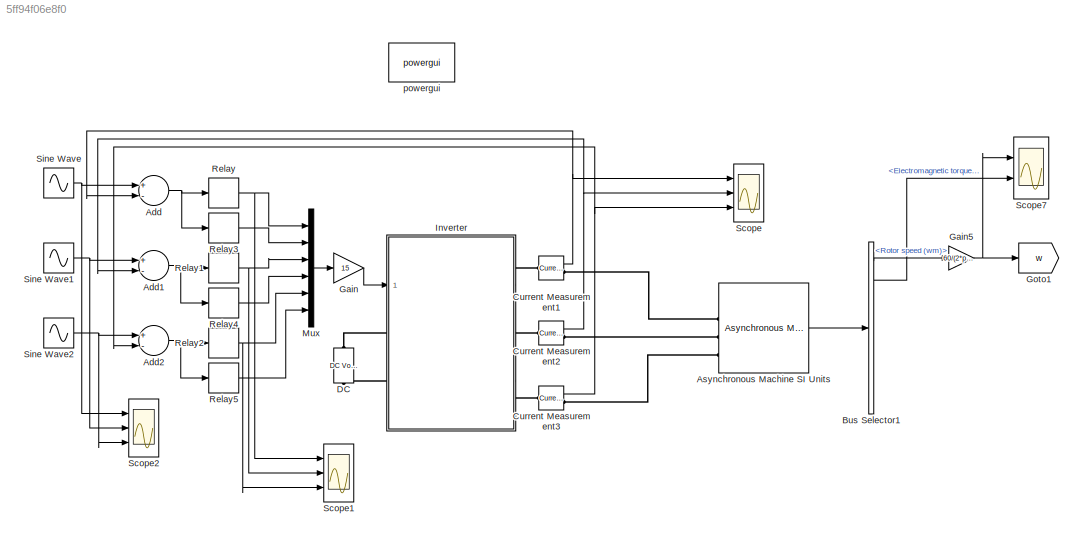
MODEL slx_5ff94f06e8f0
KIND model
CONFIG AbsTol = auto
CONFIG FixedStep = 1e-5
CONFIG MaxStep = auto
CONFIG MinStep = auto
CONFIG RelTol = 1e-3
CONFIG SampleTimeConstraint = Unconstrained
CONFIG Solver = FixedStepAuto
CONFIG SolverMode = Auto
CONFIG SolverName = FixedStepAuto
CONFIG StartTime = 0.0
CONFIG StopTime = 5
BLOCK [Sum] Add
  InputSameDT = off
  Inputs = +-
  OutDataTypeStr = Inherit: Inherit via internal rule
  Ports = [2, 1]
  SaturateOnIntegerOverflow = off
BLOCK [Sum] Add1
  InputSameDT = off
  Inputs = +-
  OutDataTypeStr = Inherit: Inherit via internal rule
  Ports = [2, 1]
  SaturateOnIntegerOverflow = off
BLOCK [Sum] Add2
  InputSameDT = off
  Inputs = +-
  OutDataTypeStr = Inherit: Inherit via internal rule
  Ports = [2, 1]
  SaturateOnIntegerOverflow = off
BLOCK [Reference] Asynchronous Machine SI Units  REF=powerlib/Machines/Asynchronous Machine
SI Units
  Ports = [1, 1, 0, 0, 0, 3]
  SourceBlock = powerlib/Machines/Asynchronous Machine\nSI Units
  SourceType = Asynchronous Machine
BLOCK [BusSelector] Bus Selector1
  OutputSignals = Mechanical.Rotor speed (wm),Mechanical.Electromagnetic torque Te (N*m),Stator measurements.Stator voltage vs_d (V),Stator measurements.Stator voltage vs_q (V),Stator measurements.Stator current is_d (A),Stator measurements.Stator current  is_q (A),Rotor measurements.Rotor flux phir_d (V s),Rotor measurements.Rotor flux phir_q (V s)
  Ports = [1, 8]
BLOCK [Reference] Current Measurement1  REF=powerlib/Measurements/Current Measurement
  Ports = [0, 1, 0, 0, 0, 1, 1]
  SourceBlock = powerlib/Measurements/Current Measurement
  SourceType = Current Measurement
  UserDataPersistent = on
BLOCK [Reference] Current Measurement2  REF=powerlib/Measurements/Current Measurement
  Ports = [0, 1, 0, 0, 0, 1, 1]
  SourceBlock = powerlib/Measurements/Current Measurement
  SourceType = Current Measurement
  UserDataPersistent = on
BLOCK [Reference] Current Measurement3  REF=powerlib/Measurements/Current Measurement
  Ports = [0, 1, 0, 0, 0, 1, 1]
  SourceBlock = powerlib/Measurements/Current Measurement
  SourceType = Current Measurement
  UserDataPersistent = on
BLOCK [Reference] DC  REF=powerlib/Electrical
Sources/DC Voltage Source
  Ports = [0, 0, 0, 0, 0, 1, 1]
  SourceBlock = powerlib/Electrical\nSources/DC Voltage Source
  SourceType = DC Voltage Source
BLOCK [Gain] Gain
  Gain = 15
  OutDataTypeStr = Inherit: Inherit via internal rule
  ParamDataTypeStr = Inherit: Inherit via internal rule
  SaturateOnIntegerOverflow = off
BLOCK [Gain] Gain5
  Gain = 60/(2*pi)
  OutDataTypeStr = Inherit: Inherit via internal rule
  ParamDataTypeStr = Inherit: Inherit via internal rule
  SaturateOnIntegerOverflow = off
BLOCK [Goto] Goto1
  GotoTag = w
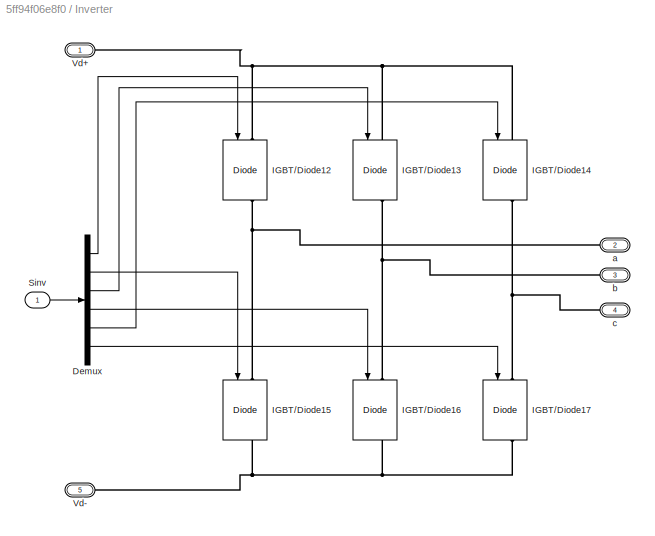
BLOCK [SubSystem] Inverter
  Ports = [1, 0, 0, 0, 0, 2, 3]
  RequestExecContextInheritance = off
  Variant = off
BLOCK [Demux] Inverter/Demux
  DisplayOption = bar
  Outputs = 6
  Ports = [1, 6]
BLOCK [Reference] Inverter/IGBT//Diode12  REF=powerlib/Power
Electronics/IGBT//Diode
  Ports = [1, 1, 0, 0, 0, 1, 1]
  SourceBlock = powerlib/Power\nElectronics/IGBT//Diode
  SourceType = IGBT/Diode
BLOCK [Reference] Inverter/IGBT//Diode13  REF=powerlib/Power
Electronics/IGBT//Diode
  Ports = [1, 1, 0, 0, 0, 1, 1]
  SourceBlock = powerlib/Power\nElectronics/IGBT//Diode
  SourceType = IGBT/Diode
BLOCK [Reference] Inverter/IGBT//Diode14  REF=powerlib/Power
Electronics/IGBT//Diode
  Ports = [1, 1, 0, 0, 0, 1, 1]
  SourceBlock = powerlib/Power\nElectronics/IGBT//Diode
  SourceType = IGBT/Diode
BLOCK [Reference] Inverter/IGBT//Diode15  REF=powerlib/Power
Electronics/IGBT//Diode
  Ports = [1, 1, 0, 0, 0, 1, 1]
  SourceBlock = powerlib/Power\nElectronics/IGBT//Diode
  SourceType = IGBT/Diode
BLOCK [Reference] Inverter/IGBT//Diode16  REF=powerlib/Power
Electronics/IGBT//Diode
  Ports = [1, 1, 0, 0, 0, 1, 1]
  SourceBlock = powerlib/Power\nElectronics/IGBT//Diode
  SourceType = IGBT/Diode
BLOCK [Reference] Inverter/IGBT//Diode17  REF=powerlib/Power
Electronics/IGBT//Diode
  Ports = [1, 1, 0, 0, 0, 1, 1]
  SourceBlock = powerlib/Power\nElectronics/IGBT//Diode
  SourceType = IGBT/Diode
BLOCK [Inport] Inverter/Sinv
  IconDisplay = Port number
BLOCK [PMIOPort] Inverter/Vd+
  Port = 1
  Side = Left
BLOCK [PMIOPort] Inverter/Vd-
  Port = 5
  Side = Left
BLOCK [PMIOPort] Inverter/a
  Port = 2
  Side = Right
BLOCK [PMIOPort] Inverter/b
  Port = 3
  Side = Right
BLOCK [PMIOPort] Inverter/c
  Port = 4
  Side = Right
BLOCK [Mux] Mux
  DisplayOption = bar
  Inputs = 6
  Ports = [6, 1]
BLOCK [Relay] Relay
  InputProcessing = Elements as channels (sample based)
  OffSwitchValue = -0.5
  OnSwitchValue = 0.5
BLOCK [Relay] Relay1
  InputProcessing = Elements as channels (sample based)
  OffSwitchValue = -0.5
  OnSwitchValue = 0.5
BLOCK [Relay] Relay2
  InputProcessing = Elements as channels (sample based)
  OffSwitchValue = -0.5
  OnSwitchValue = 0.5
BLOCK [Relay] Relay3
  InputProcessing = Elements as channels (sample based)
  OffOutputValue = 1
  OffSwitchValue = -0.5
  OnOutputValue = 0
  OnSwitchValue = 0.5
BLOCK [Relay] Relay4
  InputProcessing = Elements as channels (sample based)
  OffOutputValue = 1
  OffSwitchValue = -0.5
  OnOutputValue = 0
  OnSwitchValue = 0.5
BLOCK [Relay] Relay5
  InputProcessing = Elements as channels (sample based)
  OffOutputValue = 1
  OffSwitchValue = -0.5
  OnOutputValue = 0
  OnSwitchValue = 0.5
BLOCK [Scope] Scope
  NumInputPorts = 3
  Ports = [3]
  ScopeSpecificationString = Simulink.scopes.TimeScopeBlockCfg('CurrentConfiguration', extmgr.ConfigurationSet(extmgr.Configuration('Core','General UI',true),extmgr.Configuration('Core','Source UI',true),extmgr.Configuration('Sources','WiredSimulink',true),extmgr.Configuration('Visuals','Time Domain',true,'SerializedDisplays',{struct('MinYLimReal','2.67994','MaxYLimReal','12.76349','YLabelReal','','MinYLimMag','2.67994','MaxY...<+2772ch>
BLOCK [Scope] Scope1
  NumInputPorts = 3
  Ports = [3]
  ScopeSpecificationString = Simulink.scopes.TimeScopeBlockCfg('CurrentConfiguration', extmgr.ConfigurationSet(extmgr.Configuration('Core','General UI',true),extmgr.Configuration('Core','Source UI',true),extmgr.Configuration('Sources','WiredSimulink',true,'DataLoggingVariableName','ScopeData1'),extmgr.Configuration('Visuals','Time Domain',true,'SerializedDisplays',{struct('MinYLimReal','-0.125','MaxYLimReal','1.125','YLabelRe...<+2766ch>
BLOCK [Scope] Scope2
  NumInputPorts = 3
  Ports = [3]
  ScopeSpecificationString = Simulink.scopes.TimeScopeBlockCfg('CurrentConfiguration', extmgr.ConfigurationSet(extmgr.Configuration('Core','General UI',true),extmgr.Configuration('Core','Source UI',true),extmgr.Configuration('Sources','WiredSimulink',true,'DataLoggingVariableName','ScopeData3'),extmgr.Configuration('Visuals','Time Domain',true,'SerializedDisplays',{struct('MinYLimReal','-12.5','MaxYLimReal','12.5','YLabelReal...<+2741ch>
BLOCK [Scope] Scope7
  NumInputPorts = 2
  Ports = [2]
  ScopeSpecificationString = Simulink.scopes.TimeScopeBlockCfg('CurrentConfiguration', extmgr.ConfigurationSet(extmgr.Configuration('Core','General UI',true),extmgr.Configuration('Core','Source UI',true),extmgr.Configuration('Sources','WiredSimulink',true,'DataLoggingVariableName','ScopeData2'),extmgr.Configuration('Visuals','Time Domain',true,'SerializedDisplays',{struct('MinYLimReal','-42.78022','MaxYLimReal','385.02199','Y...<+2114ch>
BLOCK [Sin] Sine Wave
  Amplitude = 10
  Frequency = 100*pi
  Ports = [0, 1]
  SampleTime = 0
BLOCK [Sin] Sine Wave1
  Amplitude = 10
  Frequency = 100*pi
  Phase = -2/3*pi
  Ports = [0, 1]
  SampleTime = 0
BLOCK [Sin] Sine Wave2
  Amplitude = 10
  Frequency = 100*pi
  Phase = 2/3*pi
  Ports = [0, 1]
  SampleTime = 0
BLOCK [Reference] powergui  REF=powerlib/powergui
  Ports = []
  Priority = 1
  SourceBlock = powerlib/powergui
  SourceType = PSB option menu block
  UserDataPersistent = on
NET Add1:1 -> Relay1:1, Relay4:1
NET Add2:1 -> Relay2:1, Relay5:1
NET Add:1 -> Relay3:1, Relay:1
LINE Asynchronous Machine SI Units:1 -> Bus Selector1:1
LINE Bus Selector1:1 -> Gain5:1
LINE Bus Selector1:2 -> Scope7:2
NET Current Measurement1:1 -> Add:2, Scope:1
NET Current Measurement2:1 -> Add1:2, Scope:2
NET Current Measurement3:1 -> Add2:2, Scope:3
NET Gain5:1 -> Goto1:1, Scope7:1
LINE Gain:1 -> Inverter:1
LINE Inverter/Demux:1 -> Inverter/IGBT//Diode12:1
LINE Inverter/Demux:2 -> Inverter/IGBT//Diode15:1
LINE Inverter/Demux:3 -> Inverter/IGBT//Diode13:1
LINE Inverter/Demux:4 -> Inverter/IGBT//Diode16:1
LINE Inverter/Demux:5 -> Inverter/IGBT//Diode14:1
LINE Inverter/Demux:6 -> Inverter/IGBT//Diode17:1
LINE Inverter/Sinv:1 -> Inverter/Demux:1
LINE Mux:1 -> Gain:1
NET Relay1:1 -> Mux:3, Scope1:2
NET Relay2:1 -> Mux:5, Scope1:3
LINE Relay3:1 -> Mux:2
LINE Relay4:1 -> Mux:4
LINE Relay5:1 -> Mux:6
NET Relay:1 -> Mux:1, Scope1:1
NET Sine Wave1:1 -> Add1:1, Scope2:2
NET Sine Wave2:1 -> Add2:1, Scope2:3
NET Sine Wave:1 -> Add:1, Scope2:1
PLINE Asynchronous Machine SI Units:LConn1 -- Current Measurement1:RConn1
PLINE Asynchronous Machine SI Units:LConn2 -- Current Measurement2:RConn1
PLINE Asynchronous Machine SI Units:LConn3 -- Current Measurement3:RConn1
PLINE Current Measurement1:LConn1 -- Inverter:RConn1
PLINE Current Measurement2:LConn1 -- Inverter:RConn2
PLINE Current Measurement3:LConn1 -- Inverter:RConn3
PLINE DC:LConn1 -- Inverter:LConn2
PLINE DC:RConn1 -- Inverter:LConn1
PNET net1: Inverter/IGBT//Diode12:LConn1 -- Inverter/IGBT//Diode13:LConn1 -- Inverter/IGBT//Diode14:LConn1 -- Inverter/Vd+:RConn1
PNET net2: Inverter/IGBT//Diode12:RConn1 -- Inverter/IGBT//Diode15:LConn1 -- Inverter/a:RConn1
PNET net3: Inverter/IGBT//Diode13:RConn1 -- Inverter/IGBT//Diode16:LConn1 -- Inverter/b:RConn1
PNET net4: Inverter/IGBT//Diode14:RConn1 -- Inverter/IGBT//Diode17:LConn1 -- Inverter/c:RConn1
PNET net5: Inverter/IGBT//Diode15:RConn1 -- Inverter/IGBT//Diode16:RConn1 -- Inverter/IGBT//Diode17:RConn1 -- Inverter/Vd-:RConn1
note: NET lines group one-source signal fan-out (src -> all destinations, sorted); 1:1 wires keep LINE; PNET lines group multi-terminal physical nets as a canonical sorted terminal list (undirected conserving connections); 2-terminal nets keep the pairwise PLINE form
